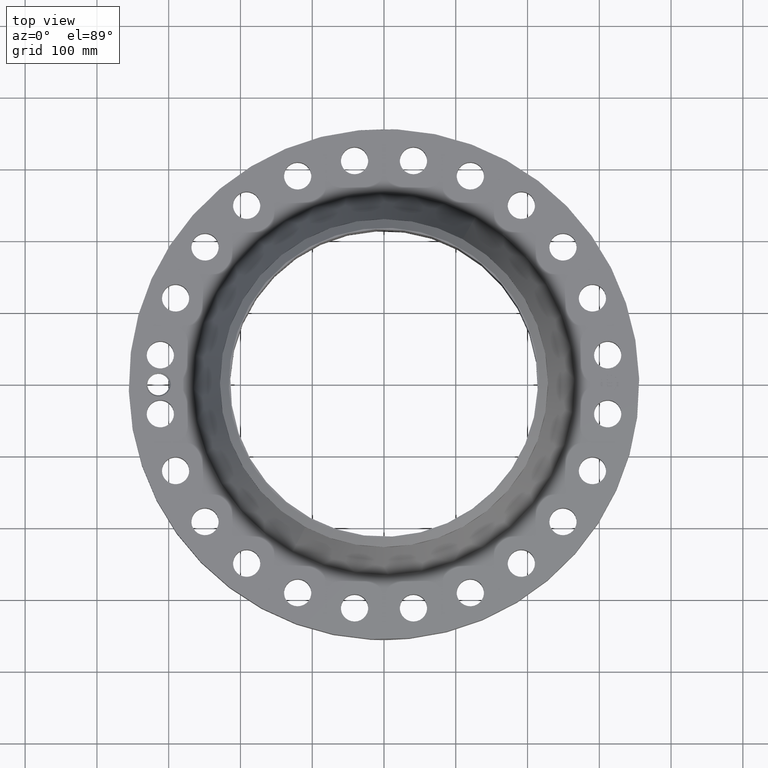
[diagram: clean part render]
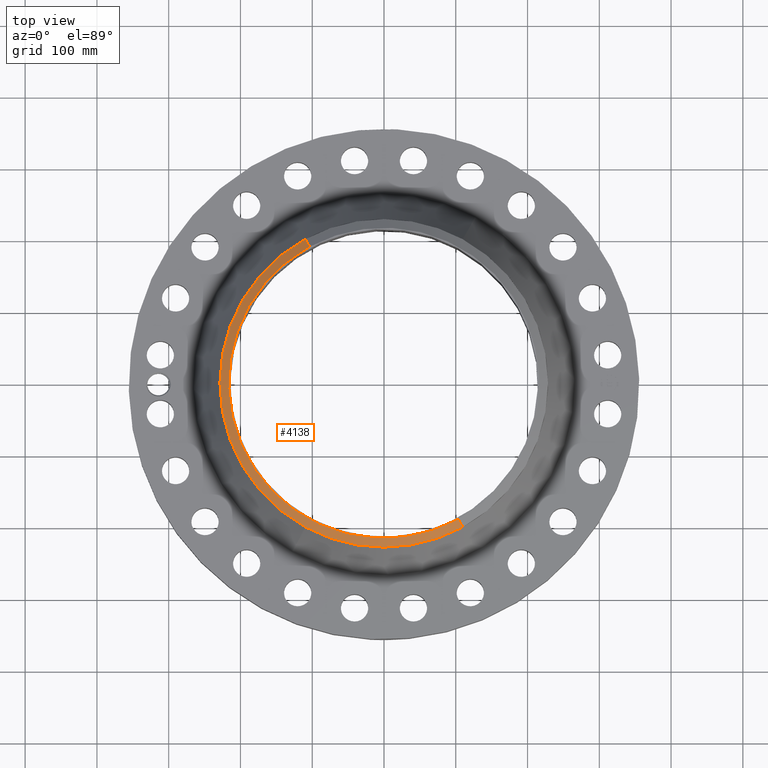
[diagram: same view with one face highlighted and labeled with its STEP entity id]
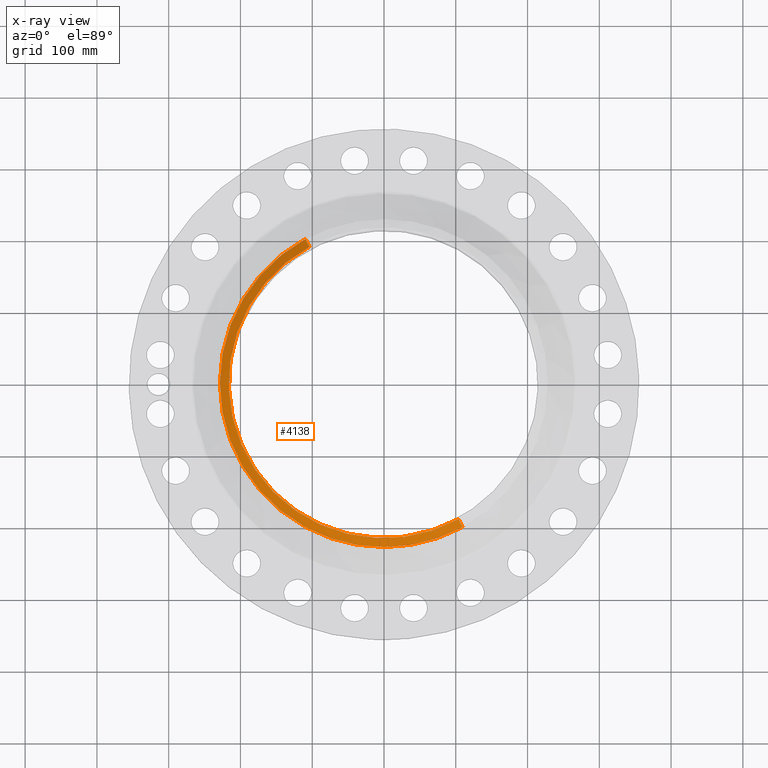
[diagram: x-ray of the same camera — body ghosted, the highlighted face saturated]
A machine part, top view. The second image highlights one B-rep face of the part: STEP entity #4138.
The next image is the same camera in x-ray: the body ghosted, the highlighted face saturated — about 0% of this face is hidden behind the body in this view.
In plain terms, the highlighted conical surface has half-angle 52.5 deg.
Its self-contained STEP definition (entity closure, byte-faithful):
#3279=AXIS2_PLACEMENT_3D('Circle Axis2P3D',#3277,#3278,$) ;
#4103=AXIS2_PLACEMENT_3D('Cone Axis2P3D',#4100,#4101,#4102) ;
#4121=AXIS2_PLACEMENT_3D('Circle Axis2P3D',#4119,#4120,$) ;
#4128=AXIS2_PLACEMENT_3D('Circle Axis2P3D',#4126,#4127,$) ;
#3272=CARTESIAN_POINT('Vertex',(4.08314273717,-7.47414264639,6.75000000003)) ;
#3274=CARTESIAN_POINT('Vertex',(-4.08314273717,7.47414264639,6.75000000003)) ;
#3277=CARTESIAN_POINT('Axis2P3D Location',(0.,0.,6.75000000003)) ;
#4100=CARTESIAN_POINT('Axis2P3D Location',(0.,0.,6.75000000003)) ;
#4105=CARTESIAN_POINT('Line Origine',(4.19898629231,-7.68619285172,6.56459084034)) ;
#4109=CARTESIAN_POINT('Vertex',(4.31482984746,-7.89824305704,6.37918168065)) ;
#4112=CARTESIAN_POINT('Line Origine',(-4.19898629231,7.68619285172,6.56459084034)) ;
#4116=CARTESIAN_POINT('Vertex',(-4.31482984746,7.89824305704,6.37918168065)) ;
#4119=CARTESIAN_POINT('Axis2P3D Location',(0.,0.,6.37918168065)) ;
#4123=CARTESIAN_POINT('Vertex',(-4.31482984746,-7.89824305704,6.37918168065)) ;
#4126=CARTESIAN_POINT('Axis2P3D Location',(0.,0.,6.37918168065)) ;
#3278=DIRECTION('Axis2P3D Direction',(0.,0.,-0.0393700787402)) ;
#4101=DIRECTION('Axis2P3D Direction',(-0.,-0.,-0.0393700787402)) ;
#4102=DIRECTION('Axis2P3D XDirection',(-0.0188750212049,0.0345504945626,0.)) ;
#4106=DIRECTION('Vector Direction',(0.014974561121,-0.02741075027,-0.023966985394)) ;
#4113=DIRECTION('Vector Direction',(-0.014974561121,0.02741075027,-0.023966985394)) ;
#4120=DIRECTION('Axis2P3D Direction',(0.,0.,-0.0393700787402)) ;
#4127=DIRECTION('Axis2P3D Direction',(0.,0.,-0.0393700787402)) ;
#4107=VECTOR('Line Direction',#4106,0.0393700787402) ;
#4114=VECTOR('Line Direction',#4113,0.0393700787402) ;
#4132=ORIENTED_EDGE('',*,*,#4111,.F.) ;
#4133=ORIENTED_EDGE('',*,*,#3281,.F.) ;
#4134=ORIENTED_EDGE('',*,*,#4118,.T.) ;
#4135=ORIENTED_EDGE('',*,*,#4125,.T.) ;
#4136=ORIENTED_EDGE('',*,*,#4130,.F.) ;
#4138=ADVANCED_FACE('PartBody',(#4137),#4104,.T.) ;
#3280=CIRCLE('generated circle',#3279,8.51674015751) ;
#4122=CIRCLE('generated circle',#4121,9.00000000004) ;
#4129=CIRCLE('generated circle',#4128,9.00000000004) ;
#4104=CONICAL_SURFACE('Cone',#4103,8.51674015751,0.916297857297) ;
#3281=EDGE_CURVE('',#3275,#3273,#3280,.F.) ;
#4111=EDGE_CURVE('',#3273,#4110,#4108,.T.) ;
#4118=EDGE_CURVE('',#3275,#4117,#4115,.T.) ;
#4125=EDGE_CURVE('',#4117,#4124,#4122,.F.) ;
#4130=EDGE_CURVE('',#4110,#4124,#4129,.T.) ;
#4131=EDGE_LOOP('',(#4132,#4133,#4134,#4135,#4136)) ;
#4137=FACE_OUTER_BOUND('',#4131,.T.) ;
#4108=LINE('Line',#4105,#4107) ;
#4115=LINE('Line',#4112,#4114) ;
#3273=VERTEX_POINT('',#3272) ;
#3275=VERTEX_POINT('',#3274) ;
#4110=VERTEX_POINT('',#4109) ;
#4117=VERTEX_POINT('',#4116) ;
#4124=VERTEX_POINT('',#4123) ;